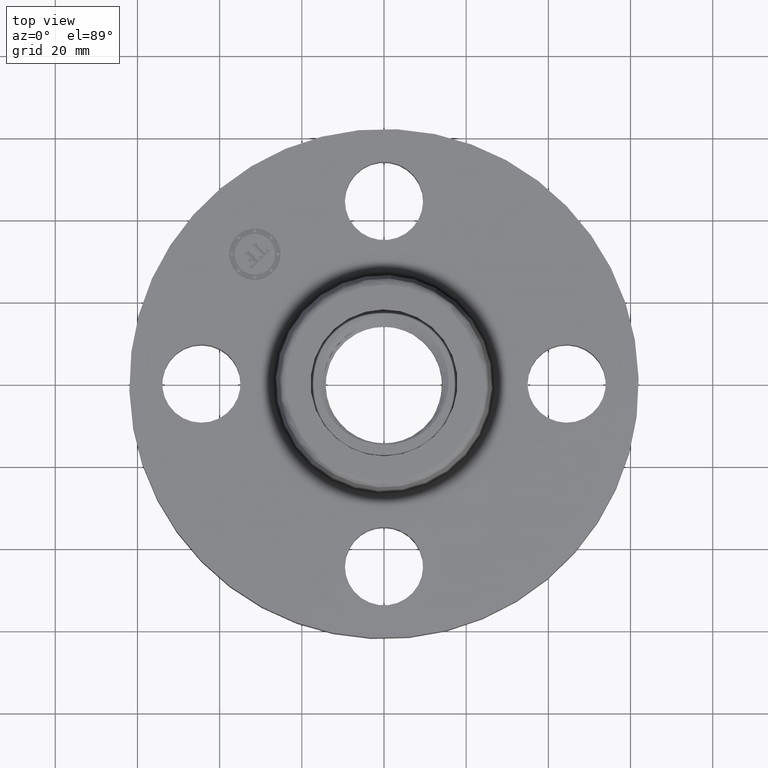
[diagram: clean part render]
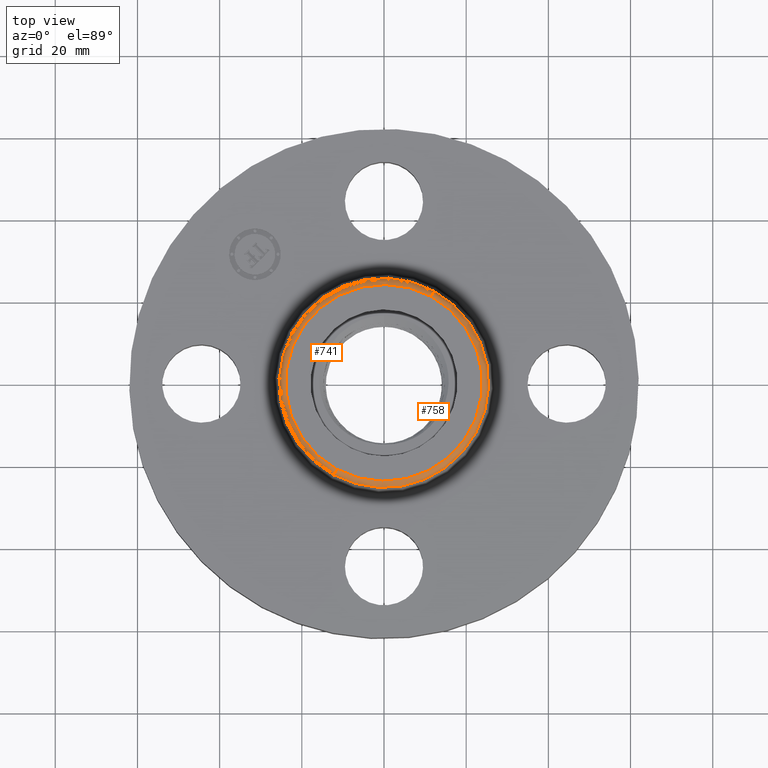
[diagram: same view with one multi-face feature highlighted, each face labeled with its STEP entity id]
A machine part, top view. The highlighted faces form ONE feature: a constant-radius fillet chain: 2 tangent blend faces with common blend radius 1.524 mm. The faces share edges in the B-rep.
Their STEP definitions:
[1] entity #758 (Torus):
#705=AXIS2_PLACEMENT_3D('Torus Axis2P3D',#702,#703,#704) ;
#718=AXIS2_PLACEMENT_3D('Circle Axis2P3D',#716,#717,$) ;
#732=AXIS2_PLACEMENT_3D('Circle Axis2P3D',#730,#731,$) ;
#744=AXIS2_PLACEMENT_3D('Circle Axis2P3D',#742,#743,$) ;
#749=AXIS2_PLACEMENT_3D('Circle Axis2P3D',#747,#748,$) ;
#702=CARTESIAN_POINT('Axis2P3D Location',(0.,0.,0.940000000004)) ;
#711=CARTESIAN_POINT('Vertex',(-0.480258892685,-0.879108006303,0.950418890664)) ;
#713=CARTESIAN_POINT('Vertex',(0.480258892685,0.879108006303,0.950418890664)) ;
#716=CARTESIAN_POINT('Axis2P3D Location',(-0.45193037344,-0.827252999652,0.940000000004)) ;
#720=CARTESIAN_POINT('Vertex',(-0.45193037344,-0.827252999652,1.)) ;
#727=CARTESIAN_POINT('Vertex',(0.45193037344,0.827252999652,1.)) ;
#730=CARTESIAN_POINT('Axis2P3D Location',(0.45193037344,0.827252999652,0.940000000004)) ;
#742=CARTESIAN_POINT('Axis2P3D Location',(0.,0.,0.950418890664)) ;
#747=CARTESIAN_POINT('Axis2P3D Location',(0.,0.,1.)) ;
#703=DIRECTION('Axis2P3D Direction',(0.,0.,-0.0393700787402)) ;
#704=DIRECTION('Axis2P3D XDirection',(0.0188750212049,0.0345504945626,0.)) ;
#717=DIRECTION('Axis2P3D Direction',(0.0345504945626,-0.0188750212049,0.)) ;
#731=DIRECTION('Axis2P3D Direction',(-0.0345504945626,0.0188750212049,0.)) ;
#743=DIRECTION('Axis2P3D Direction',(0.,0.,-0.0393700787402)) ;
#748=DIRECTION('Axis2P3D Direction',(0.,0.,-0.0393700787402)) ;
#753=ORIENTED_EDGE('',*,*,#746,.F.) ;
#754=ORIENTED_EDGE('',*,*,#734,.T.) ;
#755=ORIENTED_EDGE('',*,*,#751,.T.) ;
#756=ORIENTED_EDGE('',*,*,#722,.F.) ;
#758=ADVANCED_FACE('PartBody',(#757),#706,.T.) ;
#719=CIRCLE('generated circle',#718,0.0600000000002) ;
#733=CIRCLE('generated circle',#732,0.0600000000002) ;
#745=CIRCLE('generated circle',#744,1.00173823464) ;
#750=CIRCLE('generated circle',#749,0.942649769464) ;
#706=TOROIDAL_SURFACE('homeo Torus',#705,0.942649769464,0.0600000000002) ;
#722=EDGE_CURVE('',#712,#721,#719,.F.) ;
#734=EDGE_CURVE('',#714,#728,#733,.F.) ;
#746=EDGE_CURVE('',#714,#712,#745,.T.) ;
#751=EDGE_CURVE('',#728,#721,#750,.T.) ;
#752=EDGE_LOOP('',(#753,#754,#755,#756)) ;
#757=FACE_OUTER_BOUND('',#752,.T.) ;
#712=VERTEX_POINT('',#711) ;
#714=VERTEX_POINT('',#713) ;
#721=VERTEX_POINT('',#720) ;
#728=VERTEX_POINT('',#727) ;
[2] entity #741 (Torus):
#705=AXIS2_PLACEMENT_3D('Torus Axis2P3D',#702,#703,#704) ;
#709=AXIS2_PLACEMENT_3D('Circle Axis2P3D',#707,#708,$) ;
#718=AXIS2_PLACEMENT_3D('Circle Axis2P3D',#716,#717,$) ;
#725=AXIS2_PLACEMENT_3D('Circle Axis2P3D',#723,#724,$) ;
#732=AXIS2_PLACEMENT_3D('Circle Axis2P3D',#730,#731,$) ;
#702=CARTESIAN_POINT('Axis2P3D Location',(0.,0.,0.940000000004)) ;
#707=CARTESIAN_POINT('Axis2P3D Location',(0.,0.,0.950418890664)) ;
#711=CARTESIAN_POINT('Vertex',(-0.480258892685,-0.879108006303,0.950418890664)) ;
#713=CARTESIAN_POINT('Vertex',(0.480258892685,0.879108006303,0.950418890664)) ;
#716=CARTESIAN_POINT('Axis2P3D Location',(-0.45193037344,-0.827252999652,0.940000000004)) ;
#720=CARTESIAN_POINT('Vertex',(-0.45193037344,-0.827252999652,1.)) ;
#723=CARTESIAN_POINT('Axis2P3D Location',(0.,0.,1.)) ;
#727=CARTESIAN_POINT('Vertex',(0.45193037344,0.827252999652,1.)) ;
#730=CARTESIAN_POINT('Axis2P3D Location',(0.45193037344,0.827252999652,0.940000000004)) ;
#703=DIRECTION('Axis2P3D Direction',(0.,0.,-0.0393700787402)) ;
#704=DIRECTION('Axis2P3D XDirection',(0.0188750212049,0.0345504945626,0.)) ;
#708=DIRECTION('Axis2P3D Direction',(0.,0.,-0.0393700787402)) ;
#717=DIRECTION('Axis2P3D Direction',(0.0345504945626,-0.0188750212049,0.)) ;
#724=DIRECTION('Axis2P3D Direction',(0.,0.,-0.0393700787402)) ;
#731=DIRECTION('Axis2P3D Direction',(-0.0345504945626,0.0188750212049,0.)) ;
#736=ORIENTED_EDGE('',*,*,#715,.F.) ;
#737=ORIENTED_EDGE('',*,*,#722,.T.) ;
#738=ORIENTED_EDGE('',*,*,#729,.T.) ;
#739=ORIENTED_EDGE('',*,*,#734,.F.) ;
#741=ADVANCED_FACE('PartBody',(#740),#706,.T.) ;
#710=CIRCLE('generated circle',#709,1.00173823464) ;
#719=CIRCLE('generated circle',#718,0.0600000000002) ;
#726=CIRCLE('generated circle',#725,0.942649769464) ;
#733=CIRCLE('generated circle',#732,0.0600000000002) ;
#706=TOROIDAL_SURFACE('homeo Torus',#705,0.942649769464,0.0600000000002) ;
#715=EDGE_CURVE('',#712,#714,#710,.T.) ;
#722=EDGE_CURVE('',#712,#721,#719,.F.) ;
#729=EDGE_CURVE('',#721,#728,#726,.T.) ;
#734=EDGE_CURVE('',#714,#728,#733,.F.) ;
#735=EDGE_LOOP('',(#736,#737,#738,#739)) ;
#740=FACE_OUTER_BOUND('',#735,.T.) ;
#712=VERTEX_POINT('',#711) ;
#714=VERTEX_POINT('',#713) ;
#721=VERTEX_POINT('',#720) ;
#728=VERTEX_POINT('',#727) ;